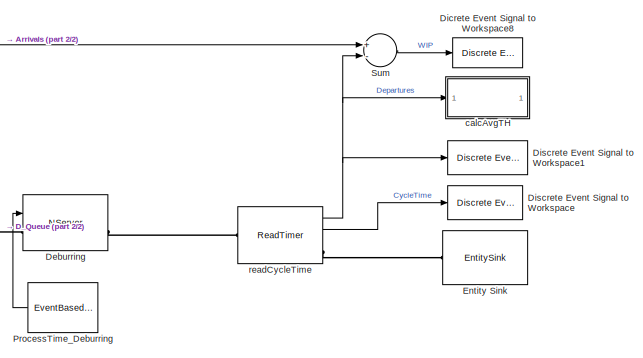
[diagram: root canvas - part 1/2, right side, full height]
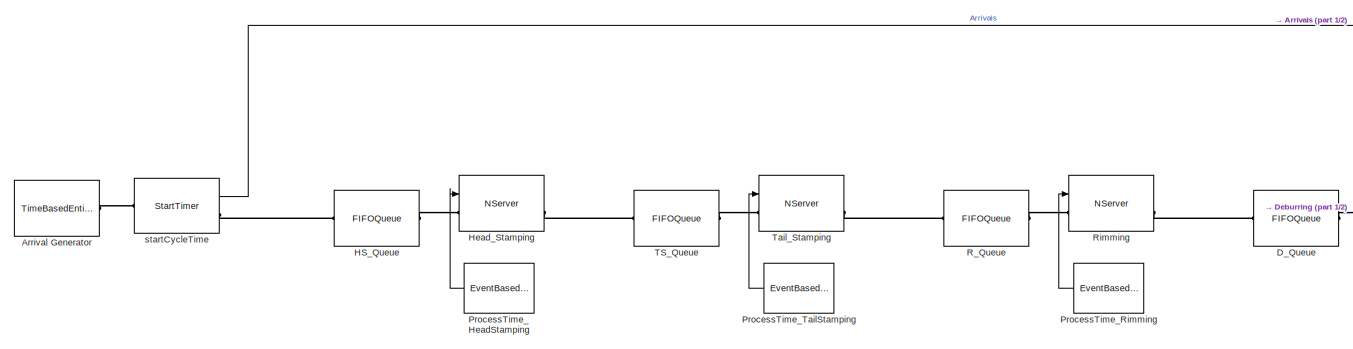
[diagram: root canvas - part 2/2, center side, full height]
MODEL slx_b8053019bf3e
KIND model
CONFIG AbsTol = auto
CONFIG FixedStep = auto
CONFIG InitFcn = warning('off','all');
CONFIG MaxStep = auto
CONFIG MinStep = auto
CONFIG PostLoadFcn = set_param(gcs, 'Location', [75 0 1300 1000]);
CONFIG RelTol = 1e-3
CONFIG SampleTimeConstraint = Unconstrained
CONFIG Solver = ode45
CONFIG SolverMode = Auto
CONFIG SolverName = ode45
CONFIG StartTime = 0.0
CONFIG StopFcn = warning('on', 'all');
CONFIG StopTime = 10000
BLOCK [TimeBasedEntityGenerator] Arrival Generator
  Distribution = Exponential
  InitialSeed = 6669
  Mean = 1/0.39
  Ports = [0, 0, 0, 0, 0, 0, 1]
BLOCK [FIFOQueue] D_Queue
  Capacity = Inf
  Ports = [0, 0, 0, 0, 0, 1, 1]
BLOCK [NServer] Deburring
  InputPortMap = u0
  NumberOfServers = 2
  OutputPortMap = o0
  Ports = [1, 1, 0, 0, 0, 1, 1]
  ServiceTime = 2
  ServiceTimeFrom = Signal port t
  StatNumberDeparted = on
BLOCK [Reference] Dicrete Event Signal to Workspace8  REF=simeventslib/SimEvents
Sinks/Discrete Event Signal
to Workspace
  Decimation = 1
  MaxDataPoints = inf
  Ports = [1]
  SaveFormat = Structure With Time
  SourceBlock = simeventslib/SimEvents\nSinks/Discrete Event Signal\nto Workspace
  SourceType = Discrete Event Signal to Workspace
  VariableName = WIP
  isMonitorOnly = off
  isRecordIC = off
BLOCK [Reference] Discrete Event Signal to Workspace  REF=simeventslib/SimEvents
Sinks/Discrete Event Signal
to Workspace
  Decimation = 1
  MaxDataPoints = inf
  Ports = [1]
  SaveFormat = Structure With Time
  SourceBlock = simeventslib/SimEvents\nSinks/Discrete Event Signal\nto Workspace
  SourceType = Discrete Event Signal to Workspace
  VariableName = CycleTime
  isMonitorOnly = off
  isRecordIC = off
BLOCK [Reference] Discrete Event Signal to Workspace1  REF=simeventslib/SimEvents
Sinks/Discrete Event Signal
to Workspace
  Decimation = 1
  MaxDataPoints = inf
  Ports = [1]
  SaveFormat = Structure With Time
  SourceBlock = simeventslib/SimEvents\nSinks/Discrete Event Signal\nto Workspace
  SourceType = Discrete Event Signal to Workspace
  VariableName = Departures
  isMonitorOnly = off
  isRecordIC = off
BLOCK [EntitySink] Entity Sink
  Ports = [0, 0, 0, 0, 0, 1]
BLOCK [FIFOQueue] HS_Queue
  Capacity = Inf
  Ports = [0, 0, 0, 0, 0, 1, 1]
BLOCK [NServer] Head_Stamping
  InputPortMap = u0
  NumberOfServers = 1
  OutputPortMap = o0
  Ports = [1, 1, 0, 0, 0, 1, 1]
  ServiceTimeFrom = Signal port t
  StatNumberDeparted = on
BLOCK [EventBasedRandomNumber] ProcessTime_Deburring
  OutputPortMap = o0
  Ports = [0, 1]
  Seed = 59337
  meanExp = 3
  meanNorm = 3
  stdNorm = 0.3
BLOCK [EventBasedRandomNumber] ProcessTime_HeadStamping
  OutputPortMap = o0
  Ports = [0, 1]
  Seed = 62554
  meanExp = 2
  meanNorm = 2
  stdNorm = 0.2
BLOCK [EventBasedRandomNumber] ProcessTime_Rimming
  OutputPortMap = o0
  Ports = [0, 1]
  Seed = 235
  meanExp = 10
  meanNorm = 10
  stdNorm = 0.1
BLOCK [EventBasedRandomNumber] ProcessTime_TailStamping
  OutputPortMap = o0
  Ports = [0, 1]
  Seed = 3452
  meanExp = 5
  meanNorm = 5
  stdNorm = 0.5
BLOCK [FIFOQueue] R_Queue
  Capacity = Inf
  Ports = [0, 0, 0, 0, 0, 1, 1]
BLOCK [NServer] Rimming
  InputPortMap = u0
  NumberOfServers = 6
  OutputPortMap = o0
  Ports = [1, 1, 0, 0, 0, 1, 1]
  ServiceTime = 6
  ServiceTimeFrom = Signal port t
  StatNumberDeparted = on
BLOCK [Sum] Sum
  InputSameDT = off
  Inputs = +-
  OutDataTypeStr = Inherit: Inherit via internal rule
  Ports = [2, 1]
  SaturateOnIntegerOverflow = off
BLOCK [FIFOQueue] TS_Queue
  Capacity = Inf
  Ports = [0, 0, 0, 0, 0, 1, 1]
BLOCK [NServer] Tail_Stamping
  InputPortMap = u0
  NumberOfServers = 2
  OutputPortMap = o0
  Ports = [1, 1, 0, 0, 0, 1, 1]
  ServiceTime = 2
  ServiceTimeFrom = Signal port t
  StatNumberDeparted = on
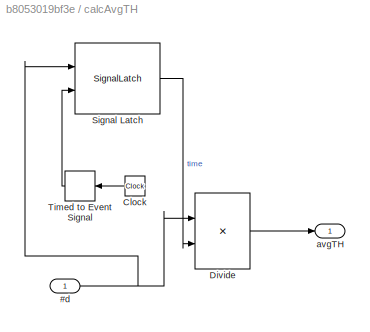
BLOCK [SubSystem] calcAvgTH
  Ports = [1, 1]
  RequestExecContextInheritance = off
BLOCK [Inport] calcAvgTH/#d
  IconDisplay = Port number
BLOCK [Clock] calcAvgTH/Clock
  Decimation = 1
  DisplayTime = on
BLOCK [Product] calcAvgTH/Divide
  InputSameDT = off
  Inputs = */
  OutDataTypeStr = Inherit: Inherit via internal rule
  Ports = [2, 1]
  RndMeth = Floor
  SaturateOnIntegerOverflow = off
BLOCK [SignalLatch] calcAvgTH/Signal Latch
  InputPortMap = u0,u2
  OutputPortMap = o2
  Ports = [2, 1]
  ReadMemoryUpon = Write to memory event
BLOCK [TimedToEventSignal] calcAvgTH/Timed to Event Signal
  InputPortMap = u0
  OutputPortMap = o0
  Ports = [1, 1]
BLOCK [Outport] calcAvgTH/avgTH
  IconDisplay = Port number
BLOCK [ReadTimer] readCycleTime
  OutputPortMap = o0,o2,o3
  Ports = [0, 3, 0, 0, 0, 1, 1]
  StatAverageTimeElapsed = on
  StatNumberDeparted = on
  StatTimeElapsed = on
  TimerTag = CycleTime
BLOCK [StartTimer] startCycleTime
  OutputPortMap = o0
  Ports = [0, 1, 0, 0, 0, 1, 1]
  StatNumberDeparted = on
  TimerStartedOption = Restart
  TimerTag = CycleTime
LINE ProcessTime_Deburring:1 -> Deburring:1
LINE ProcessTime_HeadStamping:1 -> Head_Stamping:1
LINE ProcessTime_Rimming:1 -> Rimming:1
LINE ProcessTime_TailStamping:1 -> Tail_Stamping:1
LINE Sum:1 -> Dicrete Event Signal to Workspace8:1
NET calcAvgTH/#d:1 -> calcAvgTH/Divide:1, calcAvgTH/Signal Latch:1
LINE calcAvgTH/Clock:1 -> calcAvgTH/Timed to Event Signal:1
LINE calcAvgTH/Divide:1 -> calcAvgTH/avgTH:1
LINE calcAvgTH/Signal Latch:1 -> calcAvgTH/Divide:2
LINE calcAvgTH/Timed to Event Signal:1 -> calcAvgTH/Signal Latch:2
NET readCycleTime:1 -> Discrete Event Signal to Workspace1:1, Sum:2, calcAvgTH:1
LINE readCycleTime:2 -> Discrete Event Signal to Workspace:1
LINE startCycleTime:1 -> Sum:1
PLINE Arrival Generator:RConn1 -- startCycleTime:LConn1
PLINE D_Queue:LConn1 -- Rimming:RConn1
PLINE D_Queue:RConn1 -- Deburring:LConn1
PLINE Deburring:RConn1 -- readCycleTime:LConn1
PLINE Entity Sink:LConn1 -- readCycleTime:RConn1
PLINE HS_Queue:LConn1 -- startCycleTime:RConn1
PLINE HS_Queue:RConn1 -- Head_Stamping:LConn1
PLINE Head_Stamping:RConn1 -- TS_Queue:LConn1
PLINE R_Queue:LConn1 -- Tail_Stamping:RConn1
PLINE R_Queue:RConn1 -- Rimming:LConn1
PLINE TS_Queue:RConn1 -- Tail_Stamping:LConn1
note: NET lines group one-source signal fan-out (src -> all destinations, sorted); 1:1 wires keep LINE
